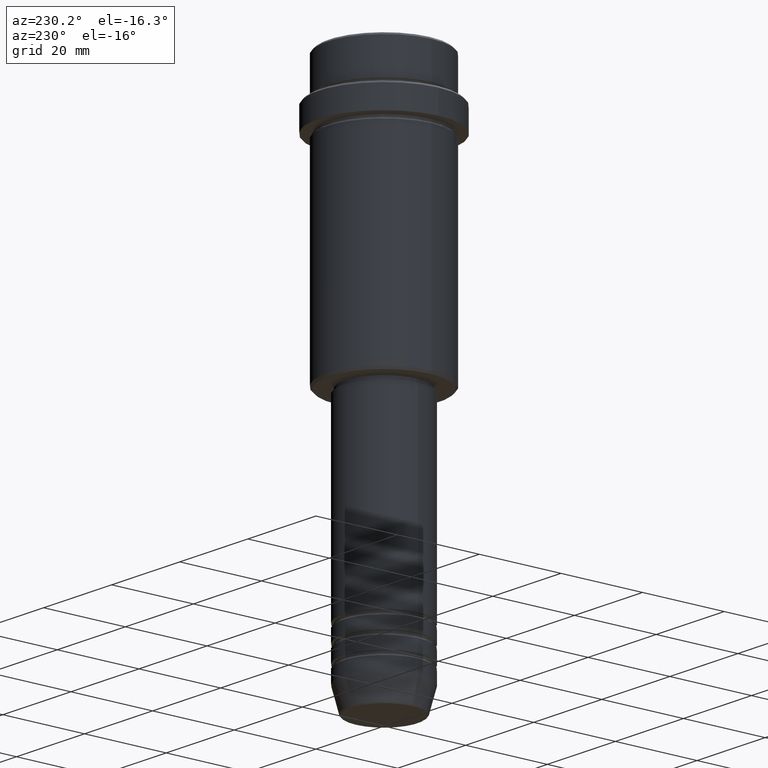
[diagram: clean part render]
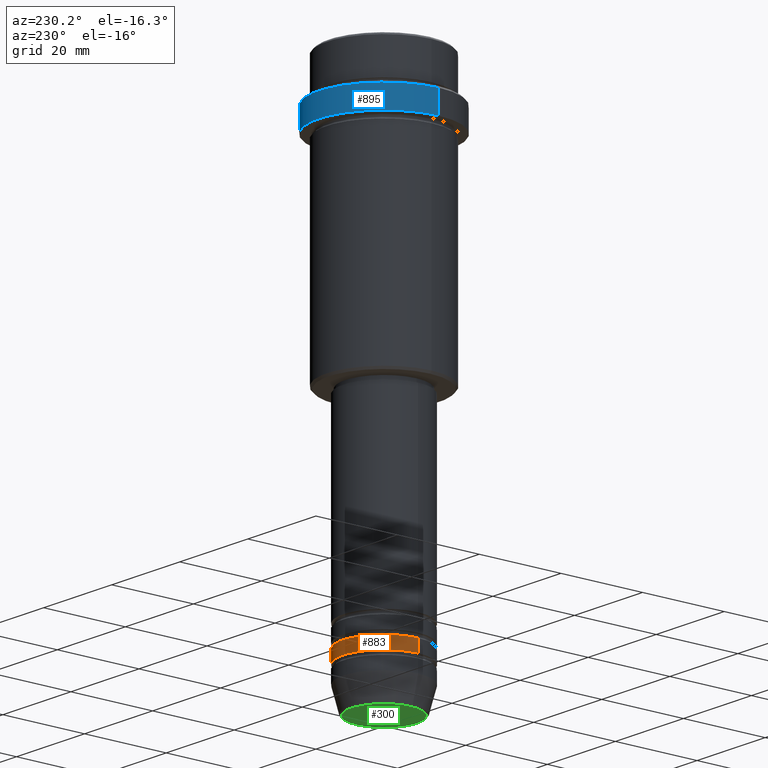
[diagram: same view with three faces highlighted in distinct colors, each labeled with its STEP entity id]
A machine part, auxiliary view with three faces highlighted in distinct colors.
Their STEP definitions:

[orange] entity #883 — the highlighted cylindrical surface (partial cylindrical patch) has radius 10 mm, axis along (-0, -0, 1).
#33 = CYLINDRICAL_SURFACE ( 'NONE', #323, 10.00000000000000000 ) ;
#103 = CARTESIAN_POINT ( 'NONE',  ( 0.000000000000000000, 0.000000000000000000, -119.9999999999998863 ) ) ;
#119 = CARTESIAN_POINT ( 'NONE',  ( 10.00000000000000000, 0.000000000000000000, -119.9999999999998863 ) ) ;
#134 = EDGE_LOOP ( 'NONE', ( #1265, #395, #1174, #739 ) ) ;
#138 = CIRCLE ( 'NONE', #503, 10.00000000000000000 ) ;
#141 = AXIS2_PLACEMENT_3D ( 'NONE', #821, #814, #478 ) ;
#247 = DIRECTION ( 'NONE',  ( -0.000000000000000000, -0.000000000000000000, 1.000000000000000000 ) ) ;
#323 = AXIS2_PLACEMENT_3D ( 'NONE', #898, #1343, #347 ) ;
#338 = DIRECTION ( 'NONE',  ( 1.000000000000000000, 0.000000000000000000, 0.000000000000000000 ) ) ;
#347 = DIRECTION ( 'NONE',  ( 1.000000000000000000, 0.000000000000000000, 0.000000000000000000 ) ) ;
#364 = VECTOR ( 'NONE', #369, 1000.000000000000000 ) ;
#369 = DIRECTION ( 'NONE',  ( -0.000000000000000000, -0.000000000000000000, 1.000000000000000000 ) ) ;
#373 = FACE_OUTER_BOUND ( 'NONE', #134, .T. ) ;
#395 = ORIENTED_EDGE ( 'NONE', *, *, #444, .T. ) ;
#442 = DIRECTION ( 'NONE',  ( -0.000000000000000000, -0.000000000000000000, 1.000000000000000000 ) ) ;
#444 = EDGE_CURVE ( 'NONE', #766, #1328, #492, .T. ) ;
#478 = DIRECTION ( 'NONE',  ( 1.000000000000000000, 0.000000000000000000, 0.000000000000000000 ) ) ;
#492 = LINE ( 'NONE', #922, #364 ) ;
#503 = AXIS2_PLACEMENT_3D ( 'NONE', #103, #442, #338 ) ;
#582 = CARTESIAN_POINT ( 'NONE',  ( -10.00000000000000000, 1.224646799147353256E-15, -116.9999999999998863 ) ) ;
#666 = VECTOR ( 'NONE', #247, 1000.000000000000000 ) ;
#676 = CARTESIAN_POINT ( 'NONE',  ( 10.00000000000000000, 0.000000000000000000, 0.000000000000000000 ) ) ;
#682 = LINE ( 'NONE', #676, #666 ) ;
#739 = ORIENTED_EDGE ( 'NONE', *, *, #873, .F. ) ;
#766 = VERTEX_POINT ( 'NONE', #1403 ) ;
#774 = VERTEX_POINT ( 'NONE', #119 ) ;
#814 = DIRECTION ( 'NONE',  ( -0.000000000000000000, -0.000000000000000000, 1.000000000000000000 ) ) ;
#817 = EDGE_CURVE ( 'NONE', #774, #766, #138, .T. ) ;
#821 = CARTESIAN_POINT ( 'NONE',  ( 0.000000000000000000, 0.000000000000000000, -116.9999999999998863 ) ) ;
#873 = EDGE_CURVE ( 'NONE', #774, #1104, #682, .T. ) ;
#883 = ADVANCED_FACE ( 'NONE', ( #373 ), #33, .T. ) ;
#898 = CARTESIAN_POINT ( 'NONE',  ( 0.000000000000000000, 0.000000000000000000, 0.000000000000000000 ) ) ;
#922 = CARTESIAN_POINT ( 'NONE',  ( -10.00000000000000000, 1.224646799147353256E-15, 0.000000000000000000 ) ) ;
#1041 = CARTESIAN_POINT ( 'NONE',  ( 10.00000000000000000, 0.000000000000000000, -116.9999999999998863 ) ) ;
#1104 = VERTEX_POINT ( 'NONE', #1041 ) ;
#1174 = ORIENTED_EDGE ( 'NONE', *, *, #1404, .F. ) ;
#1193 = CIRCLE ( 'NONE', #141, 10.00000000000000000 ) ;
#1265 = ORIENTED_EDGE ( 'NONE', *, *, #817, .T. ) ;
#1328 = VERTEX_POINT ( 'NONE', #582 ) ;
#1343 = DIRECTION ( 'NONE',  ( -0.000000000000000000, -0.000000000000000000, 1.000000000000000000 ) ) ;
#1403 = CARTESIAN_POINT ( 'NONE',  ( -10.00000000000000000, 1.224646799147353256E-15, -119.9999999999998863 ) ) ;
#1404 = EDGE_CURVE ( 'NONE', #1104, #1328, #1193, .T. ) ;

[blue] entity #895 — the highlighted cylindrical surface (partial cylindrical patch) has radius 16 mm, axis along (-0, -0, 1).
#37 = CARTESIAN_POINT ( 'NONE',  ( -15.99999999999998579, 1.959434878635763554E-15, -10.49999999999999822 ) ) ;
#111 = EDGE_CURVE ( 'NONE', #933, #822, #386, .T. ) ;
#131 = DIRECTION ( 'NONE',  ( 1.000000000000000000, 0.000000000000000000, 0.000000000000000000 ) ) ;
#214 = CARTESIAN_POINT ( 'NONE',  ( -15.99999999999998579, 1.959434878635763554E-15, 0.000000000000000000 ) ) ;
#239 = ORIENTED_EDGE ( 'NONE', *, *, #304, .F. ) ;
#304 = EDGE_CURVE ( 'NONE', #768, #822, #318, .T. ) ;
#317 = VECTOR ( 'NONE', #1194, 1000.000000000000000 ) ;
#318 = LINE ( 'NONE', #671, #317 ) ;
#350 = EDGE_LOOP ( 'NONE', ( #1157, #1314, #532, #239 ) ) ;
#366 = DIRECTION ( 'NONE',  ( 1.000000000000000000, 0.000000000000000000, 0.000000000000000000 ) ) ;
#386 = CIRCLE ( 'NONE', #863, 15.99999999999998579 ) ;
#391 = CIRCLE ( 'NONE', #937, 15.99999999999998579 ) ;
#499 = DIRECTION ( 'NONE',  ( 0.000000000000000000, 0.000000000000000000, -1.000000000000000000 ) ) ;
#532 = ORIENTED_EDGE ( 'NONE', *, *, #111, .T. ) ;
#545 = CARTESIAN_POINT ( 'NONE',  ( 15.99999999999998579, 0.000000000000000000, -16.00000000000000000 ) ) ;
#592 = DIRECTION ( 'NONE',  ( -0.000000000000000000, -0.000000000000000000, 1.000000000000000000 ) ) ;
#603 = CARTESIAN_POINT ( 'NONE',  ( 0.000000000000000000, 0.000000000000000000, -10.49999999999999822 ) ) ;
#642 = AXIS2_PLACEMENT_3D ( 'NONE', #785, #592, #366 ) ;
#671 = CARTESIAN_POINT ( 'NONE',  ( 15.99999999999998579, 0.000000000000000000, 0.000000000000000000 ) ) ;
#768 = VERTEX_POINT ( 'NONE', #545 ) ;
#770 = DIRECTION ( 'NONE',  ( -0.000000000000000000, -0.000000000000000000, 1.000000000000000000 ) ) ;
#785 = CARTESIAN_POINT ( 'NONE',  ( 0.000000000000000000, 0.000000000000000000, 0.000000000000000000 ) ) ;
#790 = CARTESIAN_POINT ( 'NONE',  ( -15.99999999999998579, 1.959434878635763554E-15, -16.00000000000000000 ) ) ;
#822 = VERTEX_POINT ( 'NONE', #876 ) ;
#840 = EDGE_CURVE ( 'NONE', #991, #933, #1410, .T. ) ;
#863 = AXIS2_PLACEMENT_3D ( 'NONE', #603, #499, #1333 ) ;
#876 = CARTESIAN_POINT ( 'NONE',  ( 15.99999999999998579, 0.000000000000000000, -10.49999999999999822 ) ) ;
#895 = ADVANCED_FACE ( 'NONE', ( #1231 ), #1005, .T. ) ;
#914 = EDGE_CURVE ( 'NONE', #768, #991, #391, .T. ) ;
#916 = DIRECTION ( 'NONE',  ( -0.000000000000000000, -0.000000000000000000, 1.000000000000000000 ) ) ;
#933 = VERTEX_POINT ( 'NONE', #37 ) ;
#937 = AXIS2_PLACEMENT_3D ( 'NONE', #1126, #916, #131 ) ;
#991 = VERTEX_POINT ( 'NONE', #790 ) ;
#1005 = CYLINDRICAL_SURFACE ( 'NONE', #642, 15.99999999999998579 ) ;
#1126 = CARTESIAN_POINT ( 'NONE',  ( 0.000000000000000000, 0.000000000000000000, -16.00000000000000000 ) ) ;
#1157 = ORIENTED_EDGE ( 'NONE', *, *, #914, .T. ) ;
#1194 = DIRECTION ( 'NONE',  ( -0.000000000000000000, -0.000000000000000000, 1.000000000000000000 ) ) ;
#1231 = FACE_OUTER_BOUND ( 'NONE', #350, .T. ) ;
#1299 = VECTOR ( 'NONE', #770, 1000.000000000000000 ) ;
#1314 = ORIENTED_EDGE ( 'NONE', *, *, #840, .T. ) ;
#1333 = DIRECTION ( 'NONE',  ( 1.000000000000000000, 0.000000000000000000, 0.000000000000000000 ) ) ;
#1410 = LINE ( 'NONE', #214, #1299 ) ;

[green] entity #300 — the highlighted planar face has unit normal (0, -0, 1).
#9 = CARTESIAN_POINT ( 'NONE',  ( 8.008641351423779753, 0.000000000000000000, -130.0000000000000000 ) ) ;
#35 = DIRECTION ( 'NONE',  ( 1.000000000000000000, 0.000000000000000000, 0.000000000000000000 ) ) ;
#77 = VERTEX_POINT ( 'NONE', #587 ) ;
#110 = DIRECTION ( 'NONE',  ( 0.000000000000000000, -0.000000000000000000, 1.000000000000000000 ) ) ;
#237 = ORIENTED_EDGE ( 'NONE', *, *, #830, .T. ) ;
#253 = CARTESIAN_POINT ( 'NONE',  ( 0.000000000000000000, 0.000000000000000000, -130.0000000000000000 ) ) ;
#294 = AXIS2_PLACEMENT_3D ( 'NONE', #541, #978, #432 ) ;
#300 = ADVANCED_FACE ( 'NONE', ( #650 ), #1294, .F. ) ;
#432 = DIRECTION ( 'NONE',  ( 1.000000000000000000, 0.000000000000000000, 0.000000000000000000 ) ) ;
#511 = ORIENTED_EDGE ( 'NONE', *, *, #1324, .T. ) ;
#541 = CARTESIAN_POINT ( 'NONE',  ( 0.000000000000000000, 0.000000000000000000, -130.0000000000000000 ) ) ;
#587 = CARTESIAN_POINT ( 'NONE',  ( -8.008641351423779753, 1.010348648938492975E-15, -130.0000000000000000 ) ) ;
#650 = FACE_OUTER_BOUND ( 'NONE', #696, .T. ) ;
#696 = EDGE_LOOP ( 'NONE', ( #511, #237 ) ) ;
#718 = DIRECTION ( 'NONE',  ( 0.000000000000000000, 0.000000000000000000, -1.000000000000000000 ) ) ;
#830 = EDGE_CURVE ( 'NONE', #77, #1279, #910, .T. ) ;
#877 = DIRECTION ( 'NONE',  ( 1.000000000000000000, 0.000000000000000000, 0.000000000000000000 ) ) ;
#910 = CIRCLE ( 'NONE', #294, 8.008641351423779753 ) ;
#978 = DIRECTION ( 'NONE',  ( 0.000000000000000000, 0.000000000000000000, -1.000000000000000000 ) ) ;
#1008 = AXIS2_PLACEMENT_3D ( 'NONE', #1405, #110, #877 ) ;
#1103 = AXIS2_PLACEMENT_3D ( 'NONE', #253, #718, #35 ) ;
#1145 = CIRCLE ( 'NONE', #1103, 8.008641351423779753 ) ;
#1279 = VERTEX_POINT ( 'NONE', #9 ) ;
#1294 = PLANE ( 'NONE',  #1008 ) ;
#1324 = EDGE_CURVE ( 'NONE', #1279, #77, #1145, .T. ) ;
#1405 = CARTESIAN_POINT ( 'NONE',  ( 0.000000000000000000, 0.000000000000000000, -130.0000000000000000 ) ) ;